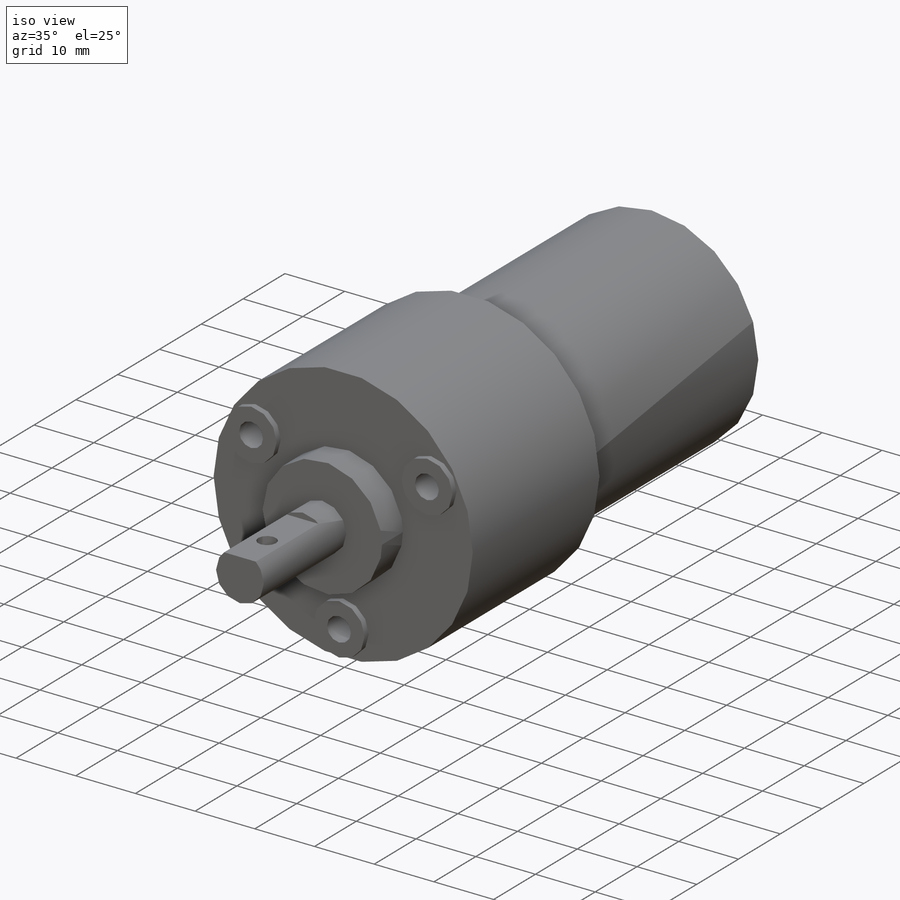
[diagram: iso view]
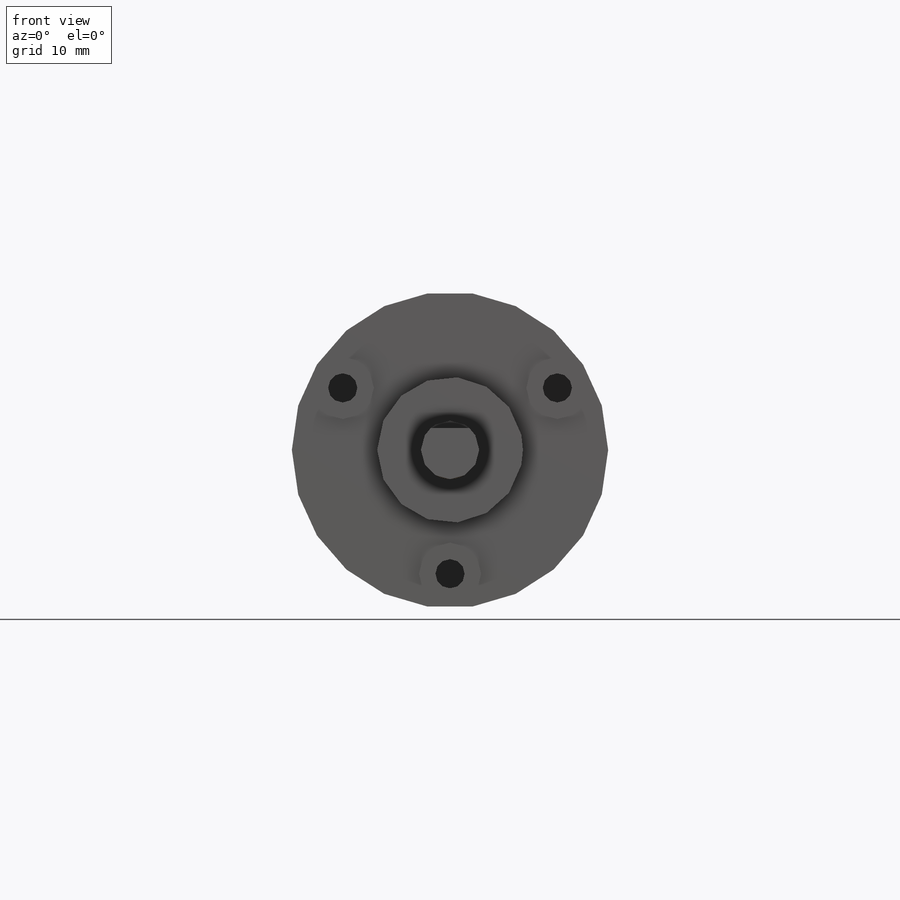
[diagram: front view]
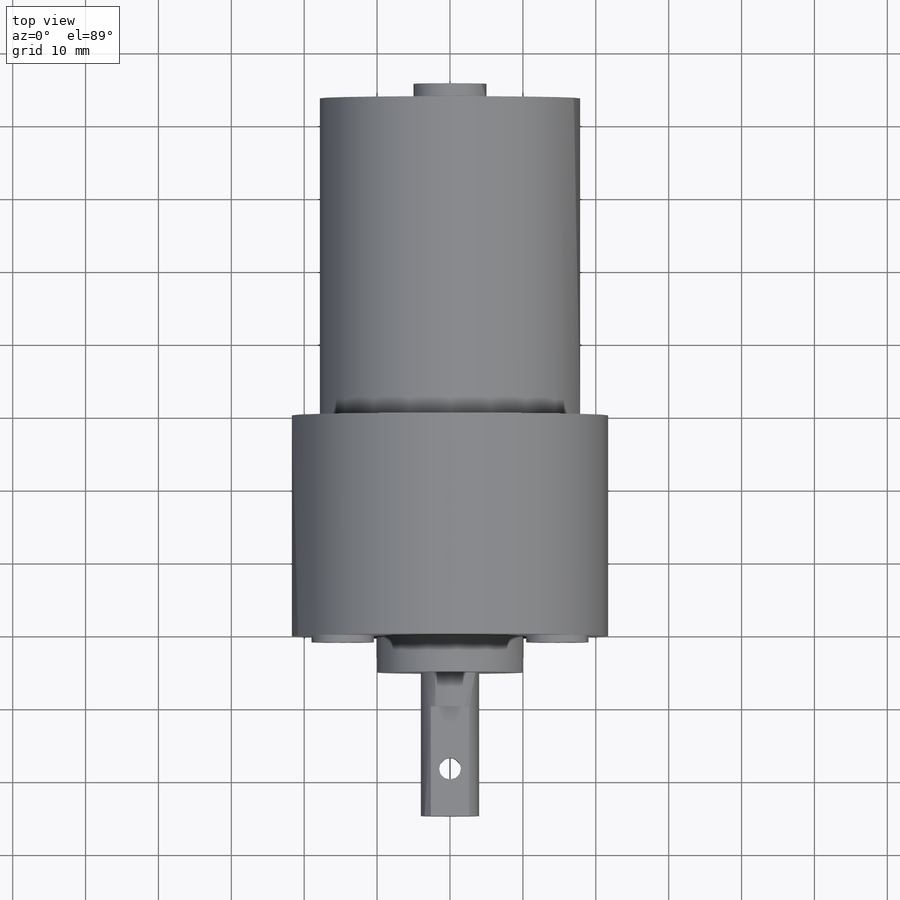
[diagram: top view]
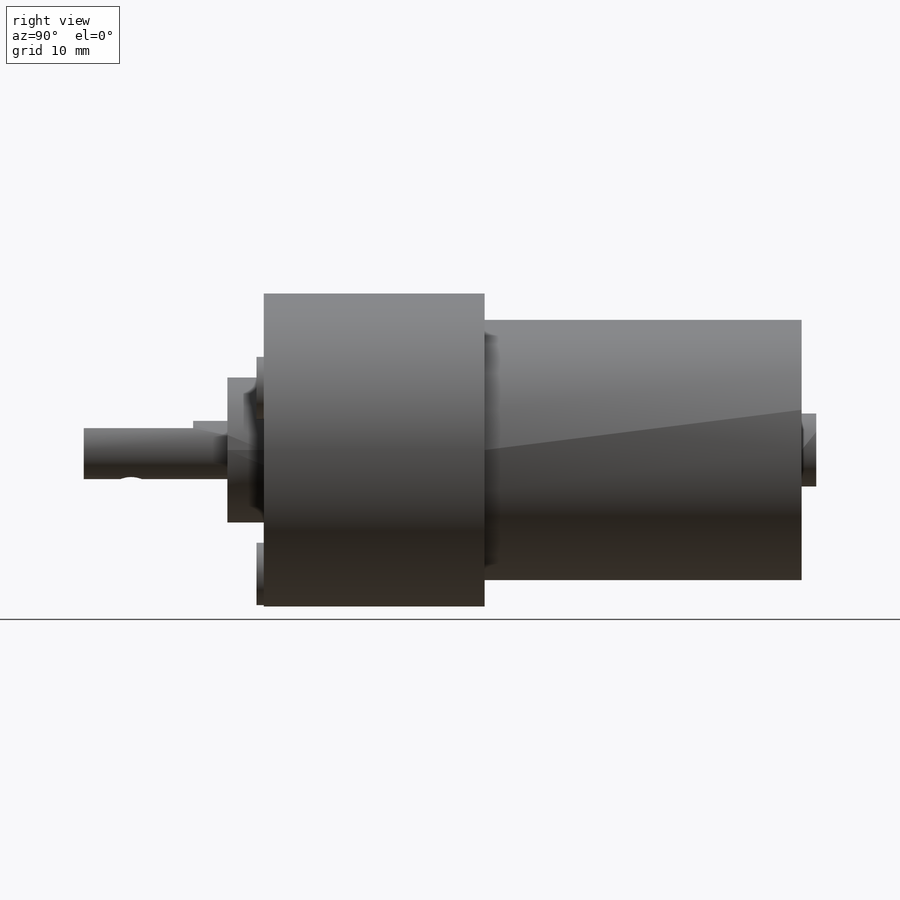
[diagram: right view]
SOLIDWORKS PART (.sldprt)
format: sldprt  version: not decoded by parser v0  size: 333,312 bytes
history: native  units: mm
features: sketch x10, extrude x6, cut_extrude x4, plane x3, material x1 (+10 scaffold rows collapsed)
feature tree (34):
  scaffold x10  (default folders/planes/origin — collapsed)
  material  "材料 <指定なし>"
  plane  "正面"
  plane  "平面"
  plane  "右側面"
  sketch  "ｽｹｯﾁ1"  dims[D1=43.4mm]
  extrude  "ﾎﾞｽ - 押し出し1"  Depth=30.3mm
  sketch  "ｽｹｯﾁ2"  dims[D1=34.0mm D2=4.0mm D3=4.0mm D4=4.0mm]
  cut_extrude  "ｶｯﾄ - 押し出し1"  Depth=10mm
  sketch  "ｽｹｯﾁ3"  dims[D1=20.0mm D2=8.55mm D3=8.55mm D4=8.55mm]
  extrude  "ﾎﾞｽ - 押し出し2"  Depth=1mm
  sketch  "ｽｹｯﾁ4"  dims[D1=4.0mm D2=4.0mm D3=4.0mm]
  cut_extrude  "ｶｯﾄ - 押し出し2"  Depth=1mm
  sketch  "ｽｹｯﾁ5"  dims[D1=20.0mm]
  extrude  "ﾎﾞｽ - 押し出し3"  Depth=5mm
  sketch  "ｽｹｯﾁ6"  dims[D1=8.0mm]
  extrude  "ﾎﾞｽ - 押し出し4"  Depth=19.7mm
  sketch  "ｽｹｯﾁ7"  dims[D1=3.0mm]
  cut_extrude  "ｶｯﾄ - 押し出し3"  Depth=15mm
  sketch  "ｽｹｯﾁ8"  dims[c1.D2=~3.027713mm c1.D3=3.0mm c1.D1=6.5mm c2.D2=2.645mm c2.D3=~2.646503mm]
  cut_extrude  "ｶｯﾄ - 押し出し4"  Depth=15mm
  sketch  "ｽｹｯﾁ9"  dims[D1=35.7mm]
  extrude  "ﾎﾞｽ - 押し出し5"  Depth=43.5mm
  sketch  "ｽｹｯﾁ10"  dims[D1=10.0mm]
  extrude  "ﾎﾞｽ - 押し出し6"  Depth=2mm
decode coverage: 20 of 20 modeling features carry decoded parameters
note: ~ marks probable driven/reference dimensions
note: suppression state not decoded; provenance and decode notes live in map.json
